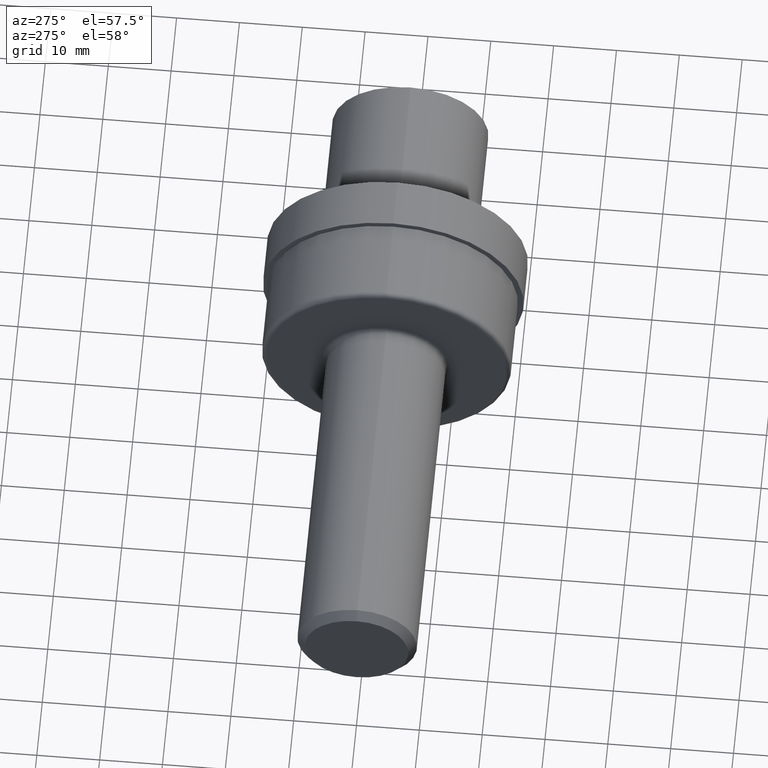
[diagram: clean part render]
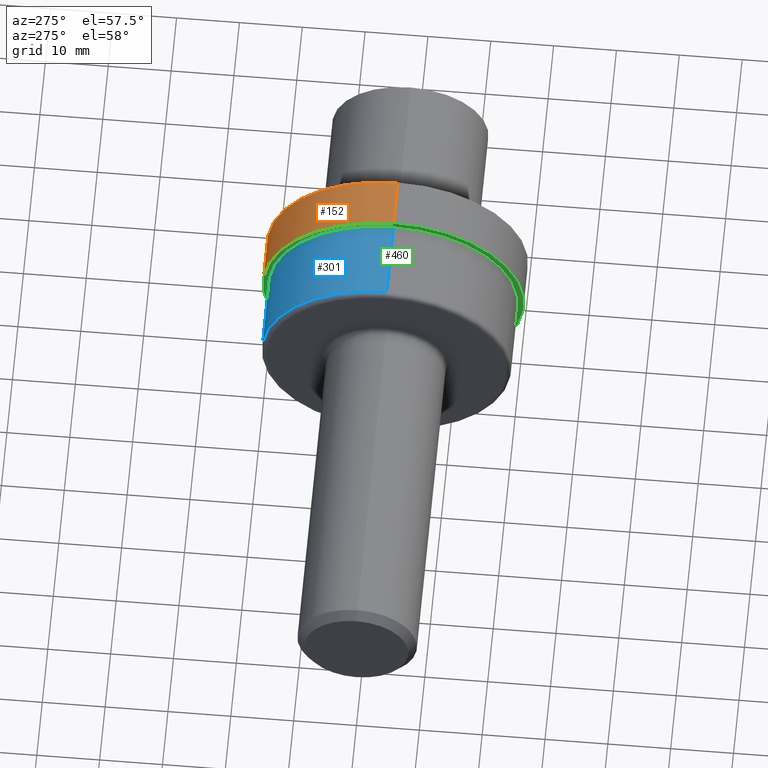
[diagram: same view with three faces highlighted in distinct colors, each labeled with its STEP entity id]
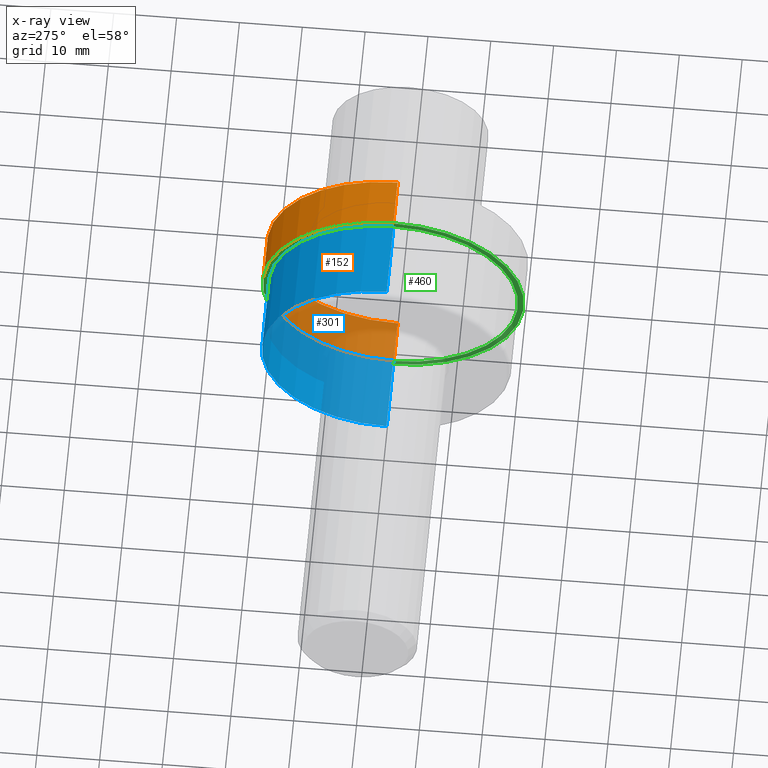
[diagram: x-ray of the same camera — body ghosted, the three highlighted faces saturated]
A machine part, auxiliary view with three faces highlighted in distinct colors.
The next image is the same camera in x-ray (body ghosted, the three faces saturated) — at least one of them is partly hidden behind the body in this view.
Their STEP definitions:

[orange] entity #152 — the highlighted cylindrical surface (partial cylindrical patch) has radius 20.7645 mm, axis along (-1, -0, -0).
#50 = CARTESIAN_POINT ( 'NONE',  ( 2.942999999999999616, 0.0000000000000000000, 0.8175000000000000044 ) ) ;
#64 = CIRCLE ( 'NONE', #183, 0.8175000000000000044 ) ;
#105 = CARTESIAN_POINT ( 'NONE',  ( 0.0000000000000000000, 0.0000000000000000000, 0.8175000000000000044 ) ) ;
#112 = VECTOR ( 'NONE', #515, 39.37007874015748143 ) ;
#113 = EDGE_CURVE ( 'NONE', #220, #540, #656, .T. ) ;
#152 = ADVANCED_FACE ( 'NONE', ( #383 ), #245, .T. ) ;
#153 = VERTEX_POINT ( 'NONE', #350 ) ;
#159 = ORIENTED_EDGE ( 'NONE', *, *, #408, .T. ) ;
#160 = ORIENTED_EDGE ( 'NONE', *, *, #467, .F. ) ;
#183 = AXIS2_PLACEMENT_3D ( 'NONE', #490, #599, #385 ) ;
#220 = VERTEX_POINT ( 'NONE', #50 ) ;
#237 = CARTESIAN_POINT ( 'NONE',  ( 2.942999999999999616, 0.0000000000000000000, 0.0000000000000000000 ) ) ;
#245 = CYLINDRICAL_SURFACE ( 'NONE', #606, 0.8175000000000000044 ) ;
#256 = DIRECTION ( 'NONE',  ( -1.000000000000000000, -0.0000000000000000000, -0.0000000000000000000 ) ) ;
#262 = VERTEX_POINT ( 'NONE', #307 ) ;
#275 = EDGE_LOOP ( 'NONE', ( #312, #159, #160, #425 ) ) ;
#302 = CARTESIAN_POINT ( 'NONE',  ( 0.0000000000000000000, 0.0000000000000000000, 0.0000000000000000000 ) ) ;
#307 = CARTESIAN_POINT ( 'NONE',  ( 2.942999999999999616, 1.001148758302961187E-16, -0.8175000000000000044 ) ) ;
#312 = ORIENTED_EDGE ( 'NONE', *, *, #361, .T. ) ;
#328 = VECTOR ( 'NONE', #480, 39.37007874015748143 ) ;
#331 = LINE ( 'NONE', #545, #328 ) ;
#346 = CIRCLE ( 'NONE', #373, 0.8175000000000000044 ) ;
#350 = CARTESIAN_POINT ( 'NONE',  ( 2.640000000000000124, 1.001148758302961187E-16, -0.8175000000000000044 ) ) ;
#361 = EDGE_CURVE ( 'NONE', #220, #262, #346, .T. ) ;
#373 = AXIS2_PLACEMENT_3D ( 'NONE', #237, #549, #542 ) ;
#383 = FACE_OUTER_BOUND ( 'NONE', #275, .T. ) ;
#385 = DIRECTION ( 'NONE',  ( 0.0000000000000000000, 0.0000000000000000000, 1.000000000000000000 ) ) ;
#408 = EDGE_CURVE ( 'NONE', #262, #153, #331, .T. ) ;
#412 = DIRECTION ( 'NONE',  ( 0.0000000000000000000, 0.0000000000000000000, 1.000000000000000000 ) ) ;
#425 = ORIENTED_EDGE ( 'NONE', *, *, #113, .F. ) ;
#467 = EDGE_CURVE ( 'NONE', #540, #153, #64, .T. ) ;
#480 = DIRECTION ( 'NONE',  ( -1.000000000000000000, -0.0000000000000000000, -0.0000000000000000000 ) ) ;
#488 = CARTESIAN_POINT ( 'NONE',  ( 2.640000000000000124, 0.0000000000000000000, 0.8175000000000000044 ) ) ;
#490 = CARTESIAN_POINT ( 'NONE',  ( 2.640000000000000124, 0.0000000000000000000, 0.0000000000000000000 ) ) ;
#515 = DIRECTION ( 'NONE',  ( -1.000000000000000000, -0.0000000000000000000, -0.0000000000000000000 ) ) ;
#540 = VERTEX_POINT ( 'NONE', #488 ) ;
#542 = DIRECTION ( 'NONE',  ( 0.0000000000000000000, 0.0000000000000000000, 1.000000000000000000 ) ) ;
#545 = CARTESIAN_POINT ( 'NONE',  ( 0.0000000000000000000, 1.001148758302961187E-16, -0.8175000000000000044 ) ) ;
#549 = DIRECTION ( 'NONE',  ( -1.000000000000000000, -0.0000000000000000000, -0.0000000000000000000 ) ) ;
#599 = DIRECTION ( 'NONE',  ( -1.000000000000000000, -0.0000000000000000000, -0.0000000000000000000 ) ) ;
#606 = AXIS2_PLACEMENT_3D ( 'NONE', #302, #256, #412 ) ;
#656 = LINE ( 'NONE', #105, #112 ) ;

[blue] entity #301 — the highlighted cylindrical surface (partial cylindrical patch) has radius 19.8374 mm, axis along (-1, -0, -0).
#11 = FACE_OUTER_BOUND ( 'NONE', #416, .T. ) ;
#16 = EDGE_CURVE ( 'NONE', #63, #653, #430, .T. ) ;
#40 = CARTESIAN_POINT ( 'NONE',  ( 2.154999999999999805, 0.0000000000000000000, 0.7810000000000001386 ) ) ;
#56 = CARTESIAN_POINT ( 'NONE',  ( 2.154999999999999805, 9.564491501340829556E-17, -0.7810000000000001386 ) ) ;
#62 = VERTEX_POINT ( 'NONE', #87 ) ;
#63 = VERTEX_POINT ( 'NONE', #40 ) ;
#87 = CARTESIAN_POINT ( 'NONE',  ( 2.640000000000000124, 0.0000000000000000000, 0.7810000000000001386 ) ) ;
#95 = DIRECTION ( 'NONE',  ( -1.000000000000000000, -0.0000000000000000000, -0.0000000000000000000 ) ) ;
#96 = AXIS2_PLACEMENT_3D ( 'NONE', #407, #95, #297 ) ;
#103 = DIRECTION ( 'NONE',  ( -1.000000000000000000, -0.0000000000000000000, -0.0000000000000000000 ) ) ;
#106 = DIRECTION ( 'NONE',  ( -1.000000000000000000, -0.0000000000000000000, -0.0000000000000000000 ) ) ;
#107 = CARTESIAN_POINT ( 'NONE',  ( 0.0000000000000000000, 0.0000000000000000000, 0.0000000000000000000 ) ) ;
#136 = ORIENTED_EDGE ( 'NONE', *, *, #647, .F. ) ;
#157 = DIRECTION ( 'NONE',  ( -1.000000000000000000, -0.0000000000000000000, -0.0000000000000000000 ) ) ;
#179 = LINE ( 'NONE', #679, #589 ) ;
#189 = AXIS2_PLACEMENT_3D ( 'NONE', #666, #288, #607 ) ;
#236 = ORIENTED_EDGE ( 'NONE', *, *, #247, .T. ) ;
#247 = EDGE_CURVE ( 'NONE', #62, #379, #619, .T. ) ;
#266 = CYLINDRICAL_SURFACE ( 'NONE', #672, 0.7810000000000001386 ) ;
#288 = DIRECTION ( 'NONE',  ( -1.000000000000000000, -0.0000000000000000000, -0.0000000000000000000 ) ) ;
#297 = DIRECTION ( 'NONE',  ( 0.0000000000000000000, 0.0000000000000000000, 1.000000000000000000 ) ) ;
#300 = CARTESIAN_POINT ( 'NONE',  ( 0.0000000000000000000, 0.0000000000000000000, 0.7810000000000001386 ) ) ;
#301 = ADVANCED_FACE ( 'NONE', ( #11 ), #266, .T. ) ;
#314 = VECTOR ( 'NONE', #106, 39.37007874015748143 ) ;
#334 = LINE ( 'NONE', #300, #314 ) ;
#379 = VERTEX_POINT ( 'NONE', #435 ) ;
#392 = ORIENTED_EDGE ( 'NONE', *, *, #667, .T. ) ;
#407 = CARTESIAN_POINT ( 'NONE',  ( 2.640000000000000124, 0.0000000000000000000, 0.0000000000000000000 ) ) ;
#414 = ORIENTED_EDGE ( 'NONE', *, *, #16, .F. ) ;
#416 = EDGE_LOOP ( 'NONE', ( #236, #392, #414, #136 ) ) ;
#430 = CIRCLE ( 'NONE', #189, 0.7810000000000001386 ) ;
#435 = CARTESIAN_POINT ( 'NONE',  ( 2.640000000000000124, 9.564491501340829556E-17, -0.7810000000000001386 ) ) ;
#562 = DIRECTION ( 'NONE',  ( 0.0000000000000000000, 0.0000000000000000000, 1.000000000000000000 ) ) ;
#589 = VECTOR ( 'NONE', #103, 39.37007874015748143 ) ;
#607 = DIRECTION ( 'NONE',  ( 0.0000000000000000000, 0.0000000000000000000, 1.000000000000000000 ) ) ;
#619 = CIRCLE ( 'NONE', #96, 0.7810000000000001386 ) ;
#647 = EDGE_CURVE ( 'NONE', #62, #63, #334, .T. ) ;
#653 = VERTEX_POINT ( 'NONE', #56 ) ;
#666 = CARTESIAN_POINT ( 'NONE',  ( 2.154999999999999805, 0.0000000000000000000, 0.0000000000000000000 ) ) ;
#667 = EDGE_CURVE ( 'NONE', #379, #653, #179, .T. ) ;
#672 = AXIS2_PLACEMENT_3D ( 'NONE', #107, #157, #562 ) ;
#679 = CARTESIAN_POINT ( 'NONE',  ( 0.0000000000000000000, 9.564491501340829556E-17, -0.7810000000000001386 ) ) ;

[green] entity #460 — the highlighted planar face has unit normal (1, 0, 0).
#2 = ORIENTED_EDGE ( 'NONE', *, *, #654, .F. ) ;
#25 = DIRECTION ( 'NONE',  ( 1.000000000000000000, 0.0000000000000000000, 0.0000000000000000000 ) ) ;
#30 = CARTESIAN_POINT ( 'NONE',  ( 2.640000000000000124, 0.0000000000000000000, 0.0000000000000000000 ) ) ;
#35 = DIRECTION ( 'NONE',  ( 0.0000000000000000000, 0.0000000000000000000, -1.000000000000000000 ) ) ;
#62 = VERTEX_POINT ( 'NONE', #87 ) ;
#64 = CIRCLE ( 'NONE', #183, 0.8175000000000000044 ) ;
#78 = FACE_BOUND ( 'NONE', #558, .T. ) ;
#87 = CARTESIAN_POINT ( 'NONE',  ( 2.640000000000000124, 0.0000000000000000000, 0.7810000000000001386 ) ) ;
#95 = DIRECTION ( 'NONE',  ( -1.000000000000000000, -0.0000000000000000000, -0.0000000000000000000 ) ) ;
#96 = AXIS2_PLACEMENT_3D ( 'NONE', #407, #95, #297 ) ;
#114 = ORIENTED_EDGE ( 'NONE', *, *, #615, .T. ) ;
#149 = AXIS2_PLACEMENT_3D ( 'NONE', #277, #25, #35 ) ;
#153 = VERTEX_POINT ( 'NONE', #350 ) ;
#176 = DIRECTION ( 'NONE',  ( -1.000000000000000000, -0.0000000000000000000, -0.0000000000000000000 ) ) ;
#183 = AXIS2_PLACEMENT_3D ( 'NONE', #490, #599, #385 ) ;
#247 = EDGE_CURVE ( 'NONE', #62, #379, #619, .T. ) ;
#277 = CARTESIAN_POINT ( 'NONE',  ( 2.640000000000000124, 0.7810000000000001386, 0.0000000000000000000 ) ) ;
#297 = DIRECTION ( 'NONE',  ( 0.0000000000000000000, 0.0000000000000000000, 1.000000000000000000 ) ) ;
#342 = ORIENTED_EDGE ( 'NONE', *, *, #467, .T. ) ;
#350 = CARTESIAN_POINT ( 'NONE',  ( 2.640000000000000124, 1.001148758302961187E-16, -0.8175000000000000044 ) ) ;
#379 = VERTEX_POINT ( 'NONE', #435 ) ;
#385 = DIRECTION ( 'NONE',  ( 0.0000000000000000000, 0.0000000000000000000, 1.000000000000000000 ) ) ;
#391 = ORIENTED_EDGE ( 'NONE', *, *, #247, .F. ) ;
#407 = CARTESIAN_POINT ( 'NONE',  ( 2.640000000000000124, 0.0000000000000000000, 0.0000000000000000000 ) ) ;
#435 = CARTESIAN_POINT ( 'NONE',  ( 2.640000000000000124, 9.564491501340829556E-17, -0.7810000000000001386 ) ) ;
#460 = ADVANCED_FACE ( 'NONE', ( #78, #613 ), #536, .F. ) ;
#465 = EDGE_LOOP ( 'NONE', ( #342, #114 ) ) ;
#467 = EDGE_CURVE ( 'NONE', #540, #153, #64, .T. ) ;
#488 = CARTESIAN_POINT ( 'NONE',  ( 2.640000000000000124, 0.0000000000000000000, 0.8175000000000000044 ) ) ;
#490 = CARTESIAN_POINT ( 'NONE',  ( 2.640000000000000124, 0.0000000000000000000, 0.0000000000000000000 ) ) ;
#536 = PLANE ( 'NONE',  #149 ) ;
#538 = AXIS2_PLACEMENT_3D ( 'NONE', #30, #176, #651 ) ;
#540 = VERTEX_POINT ( 'NONE', #488 ) ;
#546 = CIRCLE ( 'NONE', #538, 0.8175000000000000044 ) ;
#558 = EDGE_LOOP ( 'NONE', ( #391, #2 ) ) ;
#599 = DIRECTION ( 'NONE',  ( -1.000000000000000000, -0.0000000000000000000, -0.0000000000000000000 ) ) ;
#602 = CIRCLE ( 'NONE', #637, 0.7810000000000001386 ) ;
#613 = FACE_OUTER_BOUND ( 'NONE', #465, .T. ) ;
#615 = EDGE_CURVE ( 'NONE', #153, #540, #546, .T. ) ;
#619 = CIRCLE ( 'NONE', #96, 0.7810000000000001386 ) ;
#636 = DIRECTION ( 'NONE',  ( 0.0000000000000000000, 0.0000000000000000000, 1.000000000000000000 ) ) ;
#637 = AXIS2_PLACEMENT_3D ( 'NONE', #674, #669, #636 ) ;
#651 = DIRECTION ( 'NONE',  ( 0.0000000000000000000, 0.0000000000000000000, 1.000000000000000000 ) ) ;
#654 = EDGE_CURVE ( 'NONE', #379, #62, #602, .T. ) ;
#669 = DIRECTION ( 'NONE',  ( -1.000000000000000000, -0.0000000000000000000, -0.0000000000000000000 ) ) ;
#674 = CARTESIAN_POINT ( 'NONE',  ( 2.640000000000000124, 0.0000000000000000000, 0.0000000000000000000 ) ) ;